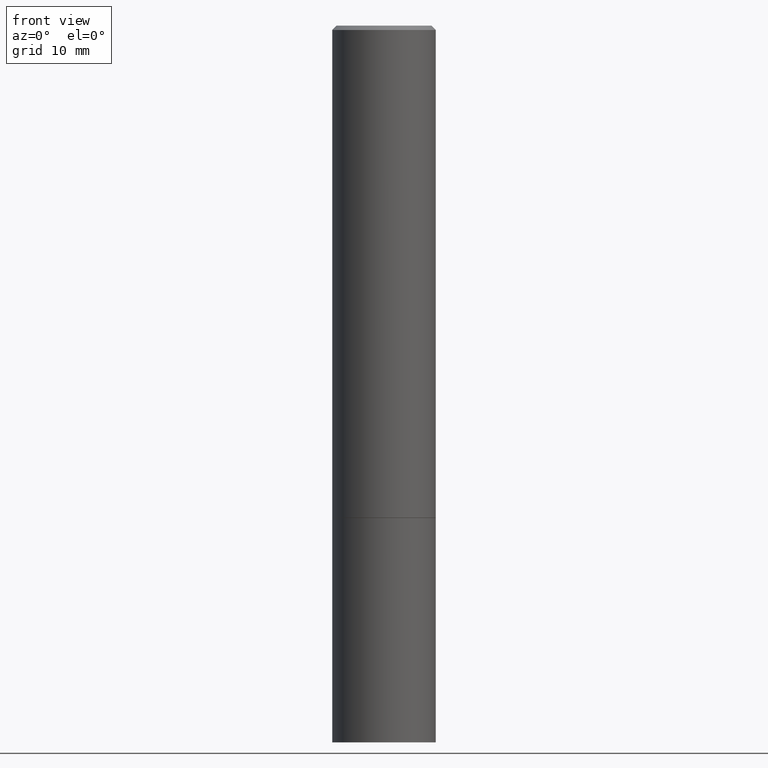
[diagram: clean part render]
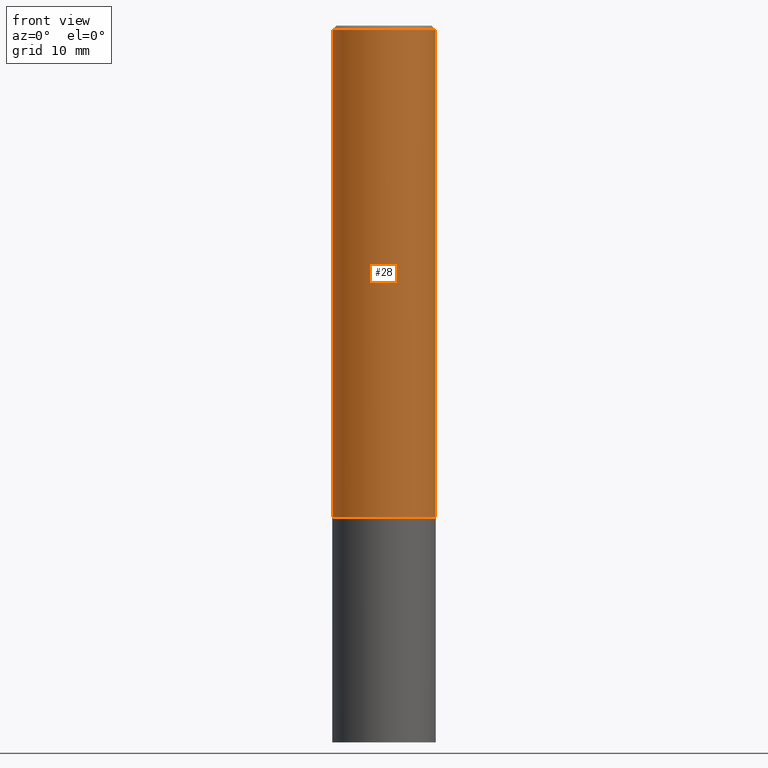
[diagram: same view with one face highlighted and labeled with its STEP entity id]
A machine part, front view. The second image highlights one B-rep face of the part: STEP entity #28.
In plain terms, the highlighted cylindrical surface (partial cylindrical patch) has radius 5.9995 mm, axis along (-0, 0, 1).
Its self-contained STEP definition (entity closure, byte-faithful):
#19 = DIRECTION ( 'NONE',  ( 1.000000000000000000, -6.982962677686266711E-15, 4.876176775795935793E-29 ) ) ;
#28 = ADVANCED_FACE ( 'NONE', ( #321 ), #68, .T. ) ;
#32 = ORIENTED_EDGE ( 'NONE', *, *, #191, .F. ) ;
#34 = CIRCLE ( 'NONE', #45, 0.2361999999999999933 ) ;
#36 = VERTEX_POINT ( 'NONE', #297 ) ;
#42 = DIRECTION ( 'NONE',  ( -2.445468806185136877E-29, 3.491481338843145188E-15, 1.000000000000000000 ) ) ;
#45 = AXIS2_PLACEMENT_3D ( 'NONE', #77, #50, #187 ) ;
#46 = CARTESIAN_POINT ( 'NONE',  ( 0.000000000000000000, 0.000000000000000000, 0.000000000000000000 ) ) ;
#50 = DIRECTION ( 'NONE',  ( -2.445468806185136597E-29, 3.491481338843145583E-15, 1.000000000000000000 ) ) ;
#58 = CARTESIAN_POINT ( 'NONE',  ( 0.2361999999999999933, -9.481117575628557435E-15, -2.243100000000000094 ) ) ;
#68 = CYLINDRICAL_SURFACE ( 'NONE', #361, 0.2361999999999998545 ) ;
#77 = CARTESIAN_POINT ( 'NONE',  ( 5.485431079153880270E-29, -7.831741791159060910E-15, -2.243100000000000094 ) ) ;
#81 = CARTESIAN_POINT ( 'NONE',  ( -0.2361999999999997157, 1.579546157692631255E-15, -0.02000000000000004552 ) ) ;
#94 = VECTOR ( 'NONE', #156, 39.37007874015748143 ) ;
#97 = VERTEX_POINT ( 'NONE', #103 ) ;
#102 = LINE ( 'NONE', #246, #94 ) ;
#103 = CARTESIAN_POINT ( 'NONE',  ( 0.2361999999999997157, -1.690279253850496996E-15, -0.02000000000000004552 ) ) ;
#106 = DIRECTION ( 'NONE',  ( -2.445468806185136597E-29, 3.491481338843145583E-15, 1.000000000000000000 ) ) ;
#108 = AXIS2_PLACEMENT_3D ( 'NONE', #271, #340, #142 ) ;
#114 = EDGE_CURVE ( 'NONE', #36, #228, #34, .T. ) ;
#139 = LINE ( 'NONE', #222, #270 ) ;
#142 = DIRECTION ( 'NONE',  ( 1.000000000000000000, -6.982962677686266711E-15, 0.000000000000000000 ) ) ;
#147 = ORIENTED_EDGE ( 'NONE', *, *, #324, .F. ) ;
#156 = DIRECTION ( 'NONE',  ( -2.445468806185136877E-29, 3.491481338843145188E-15, 1.000000000000000000 ) ) ;
#187 = DIRECTION ( 'NONE',  ( 1.000000000000000000, -6.982962677686269077E-15, 0.000000000000000000 ) ) ;
#191 = EDGE_CURVE ( 'NONE', #354, #97, #269, .T. ) ;
#202 = ORIENTED_EDGE ( 'NONE', *, *, #114, .T. ) ;
#222 = CARTESIAN_POINT ( 'NONE',  ( 0.2361999999999998545, -1.649375784469495145E-15, 1.151752954442999387E-29 ) ) ;
#228 = VERTEX_POINT ( 'NONE', #58 ) ;
#246 = CARTESIAN_POINT ( 'NONE',  ( -0.2361999999999998545, 1.678301941865355605E-15, -1.161852468318208056E-29 ) ) ;
#269 = CIRCLE ( 'NONE', #108, 0.2361999999999997157 ) ;
#270 = VECTOR ( 'NONE', #42, 39.37007874015748143 ) ;
#271 = CARTESIAN_POINT ( 'NONE',  ( 4.890937612370284544E-31, -6.982962677686307633E-17, -0.02000000000000004552 ) ) ;
#297 = CARTESIAN_POINT ( 'NONE',  ( -0.2362000000000000210, -2.272483767102602555E-15, -2.243100000000000094 ) ) ;
#307 = EDGE_CURVE ( 'NONE', #228, #97, #139, .T. ) ;
#320 = ORIENTED_EDGE ( 'NONE', *, *, #307, .T. ) ;
#321 = FACE_OUTER_BOUND ( 'NONE', #351, .T. ) ;
#324 = EDGE_CURVE ( 'NONE', #36, #354, #102, .T. ) ;
#340 = DIRECTION ( 'NONE',  ( -2.445468806185136597E-29, 3.491481338843145583E-15, 1.000000000000000000 ) ) ;
#351 = EDGE_LOOP ( 'NONE', ( #147, #202, #320, #32 ) ) ;
#354 = VERTEX_POINT ( 'NONE', #81 ) ;
#361 = AXIS2_PLACEMENT_3D ( 'NONE', #46, #106, #19 ) ;